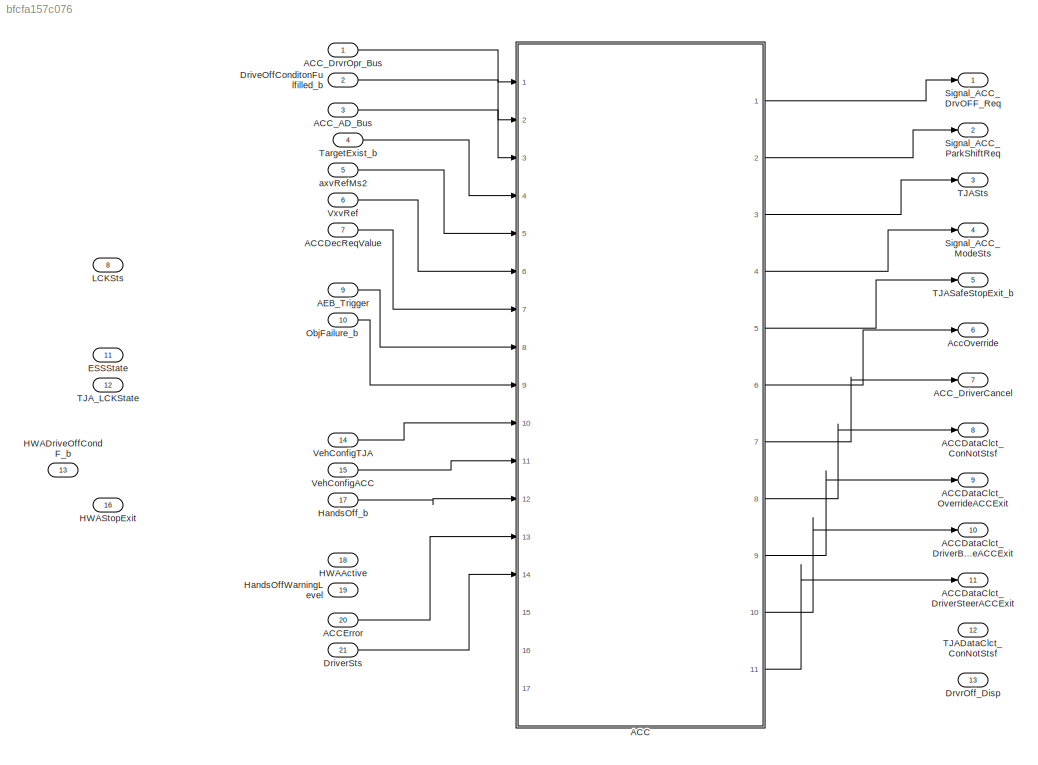
MODEL slx_bfcfa157c076
KIND model
CONFIG AbsTol = auto
CONFIG EnableMultiTasking = off
CONFIG FixedStep = auto
CONFIG InitFcn = , if any(exist('dsmpb_private', 'file') ~= 0), dsmpb_private('dsmpb_mdlclblib', 'Init', bdroot); end,\n
CONFIG MaxStep = auto
CONFIG MinStep = auto
CONFIG PostLoadFcn = if any(exist('dsrtsu_mdlpostloadfcn', 'file') ~= 0), dsrtsu_mdlpostloadfcn('Execute', bdroot); end
CONFIG RelTol = 1e-3
CONFIG SampleTimeConstraint = Unconstrained
CONFIG SolverName = FixedStepAuto
CONFIG StartTime = 0.0
CONFIG StopTime = Inf
BLOCK [SubSystem] ACC
  Ports = [17, 11]
  ReferencedSubsystem = PvtSubSys_VSM_ACC
  RequestExecContextInheritance = off
BLOCK [Outport] ACCDataClct_ConNotStsf
  Port = 8
BLOCK [Outport] ACCDataClct_DriverBrakeACCExit
  Port = 10
BLOCK [Outport] ACCDataClct_DriverSteerACCExit
  Port = 11
BLOCK [Outport] ACCDataClct_OverrideACCExit
  Port = 9
BLOCK [Inport] ACCDecReqValue
  OutDataTypeStr = single
  Port = 7
BLOCK [Inport] ACCError
  OutDataTypeStr = uint8
  Port = 20
BLOCK [Inport] ACC_AD_Bus
  OutDataTypeStr = Bus: ACC_AD_Bus
  Port = 3
BLOCK [Outport] ACC_DriverCancel
  Port = 7
BLOCK [Inport] ACC_DrvrOpr_Bus
  OutDataTypeStr = Bus: ACC_DrvrOpr_Bus
BLOCK [Inport] AEB_Trigger
  OutDataTypeStr = boolean
  Port = 9
BLOCK [Outport] AccOverride
  Port = 6
BLOCK [Inport] DriveOffConditonFulfilled_b
  OutDataTypeStr = boolean
  Port = 2
BLOCK [Inport] DriverSts
  OutDataTypeStr = uint8
  Port = 21
BLOCK [Outport] DrvrOff_Disp
  Port = 13
BLOCK [Inport] ESSState
  OutDataTypeStr = uint8
  Port = 11
BLOCK [Inport] HWAActive
  OutDataTypeStr = boolean
  Port = 18
BLOCK [Inport] HWADriveOffCondF_b
  OutDataTypeStr = boolean
  Port = 13
BLOCK [Inport] HWAStopExit
  OutDataTypeStr = boolean
  Port = 16
BLOCK [Inport] HandsOffWarningLevel
  OutDataTypeStr = uint8
  Port = 19
BLOCK [Inport] HandsOff_b
  OutDataTypeStr = boolean
  Port = 17
BLOCK [Inport] LCKSts
  OutDataTypeStr = Enum: LCK_STATE
  Port = 8
BLOCK [Inport] ObjFailure_b
  OutDataTypeStr = boolean
  Port = 10
BLOCK [Outport] Signal_ACC_DrvOFF_Req
BLOCK [Outport] Signal_ACC_ModeSts
  Port = 4
BLOCK [Outport] Signal_ACC_ParkShiftReq
  Port = 2
BLOCK [Outport] TJADataClct_ConNotStsf
  Port = 12
BLOCK [Outport] TJASafeStopExit_b
  Port = 5
BLOCK [Outport] TJASts
  Port = 3
BLOCK [Inport] TJA_LCKState
  OutDataTypeStr = Enum: LCK_STATE
  Port = 12
BLOCK [Inport] TargetExist_b
  OutDataTypeStr = boolean
  Port = 4
BLOCK [Inport] VehConfigACC
  OutDataTypeStr = boolean
  Port = 15
BLOCK [Inport] VehConfigTJA
  OutDataTypeStr = boolean
  Port = 14
BLOCK [Inport] VxvRef
  OutDataTypeStr = single
  Port = 6
BLOCK [Inport] axvRefMs2
  OutDataTypeStr = single
  Port = 5
LINE ACC:1 -> Signal_ACC_DrvOFF_Req:1
LINE ACC:10 -> ACCDataClct_DriverBrakeACCExit:1
LINE ACC:11 -> ACCDataClct_DriverSteerACCExit:1
LINE ACC:2 -> Signal_ACC_ParkShiftReq:1
LINE ACC:3 -> TJASts:1
LINE ACC:4 -> Signal_ACC_ModeSts:1
LINE ACC:5 -> TJASafeStopExit_b:1
LINE ACC:6 -> AccOverride:1
LINE ACC:7 -> ACC_DriverCancel:1
LINE ACC:8 -> ACCDataClct_ConNotStsf:1
LINE ACC:9 -> ACCDataClct_OverrideACCExit:1
LINE ACCDecReqValue:1 -> ACC:7
LINE ACCError:1 -> ACC:13
LINE ACC_AD_Bus:1 -> ACC:3
LINE ACC_DrvrOpr_Bus:1 -> ACC:1
LINE AEB_Trigger:1 -> ACC:8
LINE DriveOffConditonFulfilled_b:1 -> ACC:2
LINE DriverSts:1 -> ACC:14
LINE HandsOff_b:1 -> ACC:12
LINE ObjFailure_b:1 -> ACC:9
LINE TargetExist_b:1 -> ACC:4
LINE VehConfigACC:1 -> ACC:11
LINE VehConfigTJA:1 -> ACC:10
LINE VxvRef:1 -> ACC:6
LINE axvRefMs2:1 -> ACC:5
